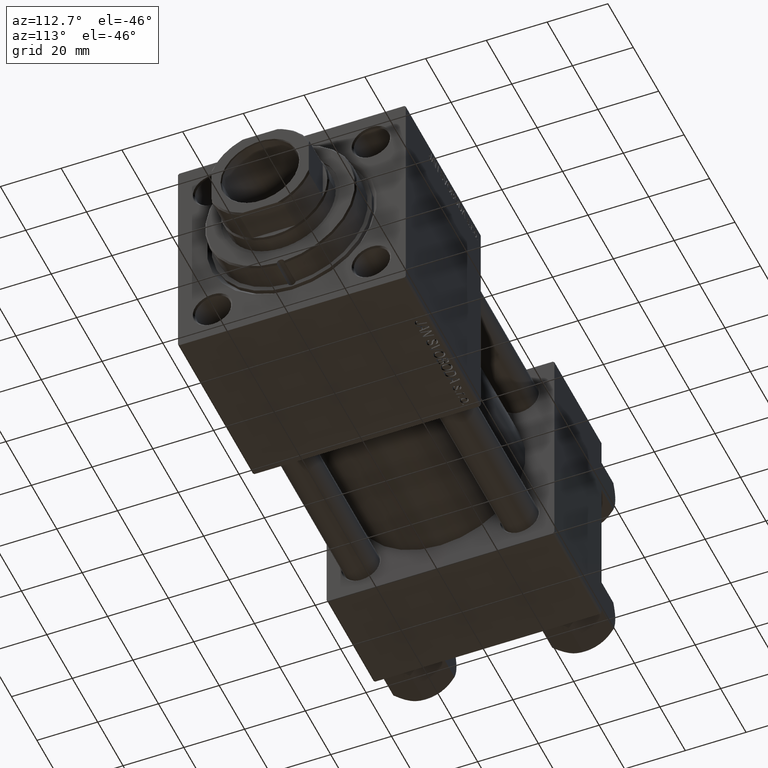
[diagram: clean part render]
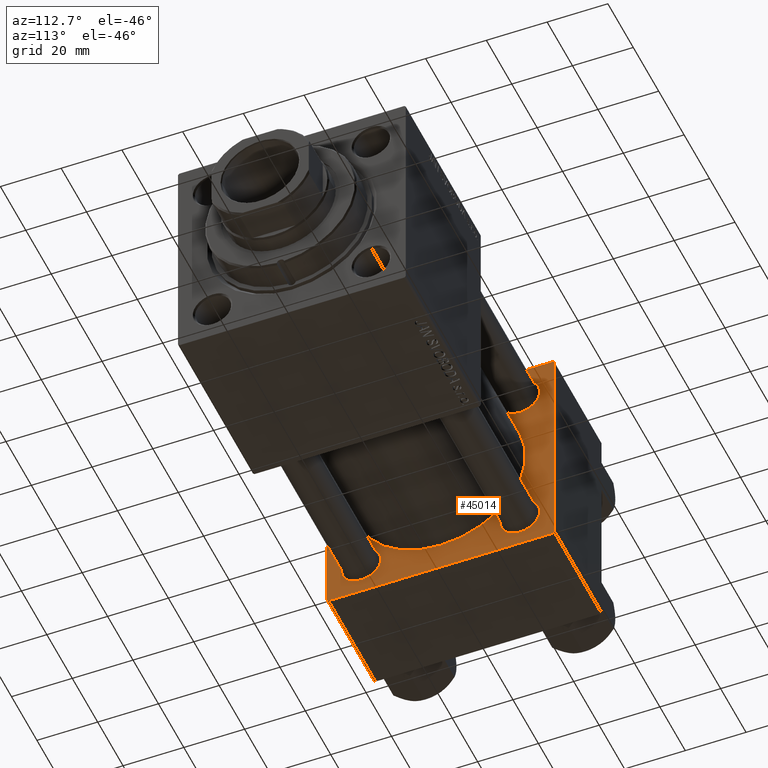
[diagram: same view with one face highlighted and labeled with its STEP entity id]
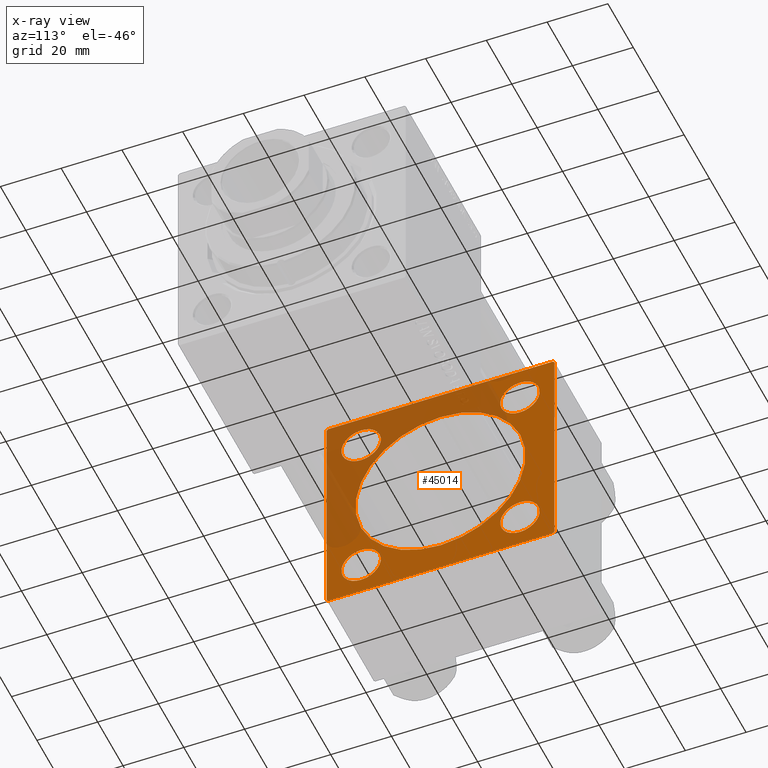
[diagram: x-ray of the same camera — body ghosted, the highlighted face saturated]
A machine part, auxiliary view. The second image highlights one B-rep face of the part: STEP entity #45014.
The next image is the same camera in x-ray: the body ghosted, the highlighted face saturated — about 40% of this face is hidden behind the body in this view.
In plain terms, the highlighted planar face has unit normal (-1, 0, 0).
Its self-contained STEP definition (entity closure, byte-faithful):
#1002 = CARTESIAN_POINT ( 'NONE',  ( 37.00000000000000000, -26.14999999999999147, 32.65000000000001990 ) ) ;
#1264 = FACE_BOUND ( 'NONE', #2562, .T. ) ;
#2562 = EDGE_LOOP ( 'NONE', ( #21542, #29133 ) ) ;
#2966 = AXIS2_PLACEMENT_3D ( 'NONE', #6539, #26437, #22104 ) ;
#3390 = AXIS2_PLACEMENT_3D ( 'NONE', #34623, #15240, #33864 ) ;
#3648 = VERTEX_POINT ( 'NONE', #46411 ) ;
#4005 = EDGE_CURVE ( 'NONE', #11038, #24720, #39227, .T. ) ;
#4181 = VERTEX_POINT ( 'NONE', #6522 ) ;
#4350 = AXIS2_PLACEMENT_3D ( 'NONE', #21207, #18167, #17140 ) ;
#4605 = DIRECTION ( 'NONE',  ( 0.000000000000000000, -1.000000000000000000, -9.251858538542972814E-17 ) ) ;
#4737 = CARTESIAN_POINT ( 'NONE',  ( 37.00000000000000000, 36.99999999999997868, -37.50000000000000000 ) ) ;
#4986 = EDGE_CURVE ( 'NONE', #13902, #3648, #12927, .T. ) ;
#5182 = ORIENTED_EDGE ( 'NONE', *, *, #4986, .F. ) ;
#5775 = ORIENTED_EDGE ( 'NONE', *, *, #10067, .T. ) ;
#5844 = DIRECTION ( 'NONE',  ( -0.000000000000000000, 0.000000000000000000, 1.000000000000000000 ) ) ;
#5937 = EDGE_CURVE ( 'NONE', #49639, #38217, #23286, .T. ) ;
#6522 = CARTESIAN_POINT ( 'NONE',  ( 37.00000000000000000, 26.14999999999999858, -32.65000000000003411 ) ) ;
#6539 = CARTESIAN_POINT ( 'NONE',  ( 37.00000000000000000, -26.14999999999999147, 26.15000000000000924 ) ) ;
#6821 = VECTOR ( 'NONE', #26865, 1000.000000000000000 ) ;
#7243 = ORIENTED_EDGE ( 'NONE', *, *, #8728, .T. ) ;
#7422 = CIRCLE ( 'NONE', #25314, 6.500000000000030198 ) ;
#7968 = CIRCLE ( 'NONE', #22595, 6.500000000000002665 ) ;
#8082 = DIRECTION ( 'NONE',  ( 0.000000000000000000, 0.000000000000000000, 1.000000000000000000 ) ) ;
#8584 = CARTESIAN_POINT ( 'NONE',  ( 37.00000000000000000, -26.14999999999999147, -26.15000000000000924 ) ) ;
#8728 = EDGE_CURVE ( 'NONE', #27639, #4181, #13281, .T. ) ;
#9100 = CARTESIAN_POINT ( 'NONE',  ( 37.00000000000000000, -26.14999999999999147, -26.15000000000000924 ) ) ;
#9183 = VECTOR ( 'NONE', #36956, 1000.000000000000114 ) ;
#9408 = EDGE_CURVE ( 'NONE', #38217, #49896, #19438, .T. ) ;
#10067 = EDGE_CURVE ( 'NONE', #27781, #34190, #7422, .T. ) ;
#10480 = DIRECTION ( 'NONE',  ( -1.000000000000000000, 0.000000000000000000, -0.000000000000000000 ) ) ;
#10817 = CARTESIAN_POINT ( 'NONE',  ( 37.00000000000000000, 36.99999999999999289, 37.50000000000000000 ) ) ;
#10891 = ORIENTED_EDGE ( 'NONE', *, *, #10997, .F. ) ;
#10997 = EDGE_CURVE ( 'NONE', #27526, #23393, #25355, .T. ) ;
#11038 = VERTEX_POINT ( 'NONE', #49655 ) ;
#11280 = DIRECTION ( 'NONE',  ( 0.000000000000000000, 0.7071067811865524577, -0.7071067811865426878 ) ) ;
#11312 = LINE ( 'NONE', #22782, #6821 ) ;
#12442 = CARTESIAN_POINT ( 'NONE',  ( 37.00000000000000000, 37.49999999999999289, 37.50000000000000000 ) ) ;
#12572 = CARTESIAN_POINT ( 'NONE',  ( 37.00000000000000000, -2.602085213965210642E-15, 28.00000000000000000 ) ) ;
#12747 = LINE ( 'NONE', #47662, #37394 ) ;
#12780 = CIRCLE ( 'NONE', #38849, 6.500000000000008882 ) ;
#12927 = LINE ( 'NONE', #12442, #35211 ) ;
#13153 = DIRECTION ( 'NONE',  ( 0.000000000000000000, 0.000000000000000000, 1.000000000000000000 ) ) ;
#13281 = CIRCLE ( 'NONE', #4350, 6.500000000000030198 ) ;
#13745 = FACE_BOUND ( 'NONE', #15035, .T. ) ;
#13902 = VERTEX_POINT ( 'NONE', #18147 ) ;
#14156 = ORIENTED_EDGE ( 'NONE', *, *, #32208, .T. ) ;
#15035 = EDGE_LOOP ( 'NONE', ( #26182, #28436 ) ) ;
#15240 = DIRECTION ( 'NONE',  ( 1.000000000000000000, -0.000000000000000000, 0.000000000000000000 ) ) ;
#15355 = CARTESIAN_POINT ( 'NONE',  ( 37.00000000000000000, -37.00000000000002132, -37.50000000000000711 ) ) ;
#15395 = EDGE_CURVE ( 'NONE', #13902, #46635, #45731, .T. ) ;
#15845 = EDGE_LOOP ( 'NONE', ( #29174, #7243 ) ) ;
#16826 = PLANE ( 'NONE',  #33327 ) ;
#17085 = CARTESIAN_POINT ( 'NONE',  ( 37.00000000000000000, -37.50000000000000711, 36.99999999999999289 ) ) ;
#17140 = DIRECTION ( 'NONE',  ( 0.000000000000000000, 0.000000000000000000, 1.000000000000000000 ) ) ;
#17184 = CARTESIAN_POINT ( 'NONE',  ( 37.00000000000000000, -2.602085213965210642E-15, 0.000000000000000000 ) ) ;
#17234 = ORIENTED_EDGE ( 'NONE', *, *, #18759, .T. ) ;
#17928 = VERTEX_POINT ( 'NONE', #1002 ) ;
#18117 = EDGE_CURVE ( 'NONE', #23393, #27526, #49043, .T. ) ;
#18147 = CARTESIAN_POINT ( 'NONE',  ( 37.00000000000000000, 37.49999999999999289, 37.00000000000000000 ) ) ;
#18167 = DIRECTION ( 'NONE',  ( -1.000000000000000000, 0.000000000000000000, -0.000000000000000000 ) ) ;
#18394 = DIRECTION ( 'NONE',  ( 0.000000000000000000, 0.000000000000000000, 1.000000000000000000 ) ) ;
#18759 = EDGE_CURVE ( 'NONE', #39891, #49639, #48177, .T. ) ;
#19065 = ORIENTED_EDGE ( 'NONE', *, *, #18117, .F. ) ;
#19438 = LINE ( 'NONE', #15355, #49750 ) ;
#19464 = DIRECTION ( 'NONE',  ( 0.000000000000000000, 9.251858538542971581E-17, -1.000000000000000000 ) ) ;
#20106 = VECTOR ( 'NONE', #22659, 1000.000000000000114 ) ;
#20899 = FACE_BOUND ( 'NONE', #15845, .T. ) ;
#21207 = CARTESIAN_POINT ( 'NONE',  ( 37.00000000000000000, 26.14999999999999858, -26.15000000000000213 ) ) ;
#21542 = ORIENTED_EDGE ( 'NONE', *, *, #27017, .T. ) ;
#21652 = FACE_OUTER_BOUND ( 'NONE', #38279, .T. ) ;
#21731 = EDGE_CURVE ( 'NONE', #46635, #39891, #11312, .T. ) ;
#22090 = EDGE_CURVE ( 'NONE', #4181, #27639, #27266, .T. ) ;
#22104 = DIRECTION ( 'NONE',  ( 0.000000000000000000, 0.000000000000000000, 1.000000000000000000 ) ) ;
#22595 = AXIS2_PLACEMENT_3D ( 'NONE', #8584, #47324, #13153 ) ;
#22659 = DIRECTION ( 'NONE',  ( -0.000000000000000000, 0.7071067811865474617, 0.7071067811865474617 ) ) ;
#22782 = CARTESIAN_POINT ( 'NONE',  ( 37.00000000000000000, 37.49999999999999289, 37.50000000000000000 ) ) ;
#22792 = DIRECTION ( 'NONE',  ( 0.000000000000000000, -0.7071067811865474617, 0.7071067811865474617 ) ) ;
#23193 = DIRECTION ( 'NONE',  ( -1.000000000000000000, 0.000000000000000000, -0.000000000000000000 ) ) ;
#23286 = LINE ( 'NONE', #30162, #48120 ) ;
#23393 = VERTEX_POINT ( 'NONE', #35035 ) ;
#24115 = ORIENTED_EDGE ( 'NONE', *, *, #5937, .T. ) ;
#24118 = CIRCLE ( 'NONE', #2966, 6.500000000000008882 ) ;
#24658 = DIRECTION ( 'NONE',  ( 0.000000000000000000, 0.000000000000000000, 1.000000000000000000 ) ) ;
#24720 = VERTEX_POINT ( 'NONE', #31408 ) ;
#24972 = FACE_BOUND ( 'NONE', #25616, .T. ) ;
#25314 = AXIS2_PLACEMENT_3D ( 'NONE', #39428, #35121, #8082 ) ;
#25355 = CIRCLE ( 'NONE', #3390, 28.00000000000000000 ) ;
#25509 = VERTEX_POINT ( 'NONE', #49271 ) ;
#25616 = EDGE_LOOP ( 'NONE', ( #5775, #34362 ) ) ;
#26182 = ORIENTED_EDGE ( 'NONE', *, *, #40378, .T. ) ;
#26437 = DIRECTION ( 'NONE',  ( -1.000000000000000000, 0.000000000000000000, -0.000000000000000000 ) ) ;
#26623 = CARTESIAN_POINT ( 'NONE',  ( 37.00000000000000000, -37.00000000000002132, -37.50000000000000711 ) ) ;
#26865 = DIRECTION ( 'NONE',  ( 0.000000000000000000, -1.000000000000000000, -9.251858538542971581E-17 ) ) ;
#26902 = ORIENTED_EDGE ( 'NONE', *, *, #9408, .T. ) ;
#27017 = EDGE_CURVE ( 'NONE', #25509, #17928, #24118, .T. ) ;
#27018 = VECTOR ( 'NONE', #22792, 1000.000000000000114 ) ;
#27028 = CARTESIAN_POINT ( 'NONE',  ( 37.00000000000000000, 26.14999999999999858, 26.15000000000000213 ) ) ;
#27266 = CIRCLE ( 'NONE', #45953, 6.500000000000030198 ) ;
#27526 = VERTEX_POINT ( 'NONE', #12572 ) ;
#27639 = VERTEX_POINT ( 'NONE', #35476 ) ;
#27781 = VERTEX_POINT ( 'NONE', #31896 ) ;
#27892 = ORIENTED_EDGE ( 'NONE', *, *, #44869, .F. ) ;
#28436 = ORIENTED_EDGE ( 'NONE', *, *, #4005, .T. ) ;
#28442 = ORIENTED_EDGE ( 'NONE', *, *, #15395, .T. ) ;
#28718 = ORIENTED_EDGE ( 'NONE', *, *, #21731, .T. ) ;
#29133 = ORIENTED_EDGE ( 'NONE', *, *, #33129, .T. ) ;
#29154 = CARTESIAN_POINT ( 'NONE',  ( 37.00000000000000000, 26.14999999999999858, 32.65000000000004121 ) ) ;
#29174 = ORIENTED_EDGE ( 'NONE', *, *, #22090, .T. ) ;
#29852 = CARTESIAN_POINT ( 'NONE',  ( 37.00000000000000000, -26.14999999999999147, 26.15000000000000924 ) ) ;
#30162 = CARTESIAN_POINT ( 'NONE',  ( 37.00000000000000000, -37.50000000000000711, 37.49999999999999289 ) ) ;
#31408 = CARTESIAN_POINT ( 'NONE',  ( 37.00000000000000000, -26.14999999999999147, -32.65000000000001279 ) ) ;
#31563 = DIRECTION ( 'NONE',  ( -1.000000000000000000, 0.000000000000000000, -0.000000000000000000 ) ) ;
#31774 = DIRECTION ( 'NONE',  ( 0.000000000000000000, 0.000000000000000000, 1.000000000000000000 ) ) ;
#31896 = CARTESIAN_POINT ( 'NONE',  ( 37.00000000000000000, 26.14999999999999858, 19.64999999999997016 ) ) ;
#31916 = AXIS2_PLACEMENT_3D ( 'NONE', #9100, #31563, #24658 ) ;
#32208 = EDGE_CURVE ( 'NONE', #36394, #3648, #34644, .T. ) ;
#32989 = DIRECTION ( 'NONE',  ( 0.000000000000000000, 0.000000000000000000, 1.000000000000000000 ) ) ;
#33129 = EDGE_CURVE ( 'NONE', #17928, #25509, #12780, .T. ) ;
#33327 = AXIS2_PLACEMENT_3D ( 'NONE', #40261, #41013, #5844 ) ;
#33864 = DIRECTION ( 'NONE',  ( 0.000000000000000000, 0.000000000000000000, 1.000000000000000000 ) ) ;
#34190 = VERTEX_POINT ( 'NONE', #29154 ) ;
#34362 = ORIENTED_EDGE ( 'NONE', *, *, #39080, .T. ) ;
#34623 = CARTESIAN_POINT ( 'NONE',  ( 37.00000000000000000, -2.602085213965210642E-15, 0.000000000000000000 ) ) ;
#34644 = LINE ( 'NONE', #38954, #20106 ) ;
#35035 = CARTESIAN_POINT ( 'NONE',  ( 37.00000000000000000, 8.269258236473776482E-16, -28.00000000000000000 ) ) ;
#35121 = DIRECTION ( 'NONE',  ( -1.000000000000000000, 0.000000000000000000, -0.000000000000000000 ) ) ;
#35211 = VECTOR ( 'NONE', #35887, 1000.000000000000000 ) ;
#35476 = CARTESIAN_POINT ( 'NONE',  ( 37.00000000000000000, 26.14999999999999858, -19.64999999999997371 ) ) ;
#35881 = DIRECTION ( 'NONE',  ( 0.000000000000000000, 0.000000000000000000, 1.000000000000000000 ) ) ;
#35887 = DIRECTION ( 'NONE',  ( 0.000000000000000000, 0.000000000000000000, -1.000000000000000000 ) ) ;
#36394 = VERTEX_POINT ( 'NONE', #4737 ) ;
#36563 = CARTESIAN_POINT ( 'NONE',  ( 37.00000000000000000, -37.50000000000000711, 36.99999999999999289 ) ) ;
#36956 = DIRECTION ( 'NONE',  ( -0.000000000000000000, -0.7071067811865474617, -0.7071067811865474617 ) ) ;
#37394 = VECTOR ( 'NONE', #4605, 1000.000000000000000 ) ;
#37734 = CARTESIAN_POINT ( 'NONE',  ( 37.00000000000000000, -37.00000000000000711, 37.49999999999999289 ) ) ;
#38217 = VERTEX_POINT ( 'NONE', #39157 ) ;
#38279 = EDGE_LOOP ( 'NONE', ( #27892, #14156, #5182, #28442, #28718, #17234, #24115, #26902 ) ) ;
#38849 = AXIS2_PLACEMENT_3D ( 'NONE', #29852, #10480, #18394 ) ;
#38954 = CARTESIAN_POINT ( 'NONE',  ( 37.00000000000000000, 37.49999999999999289, -36.99999999999998579 ) ) ;
#39080 = EDGE_CURVE ( 'NONE', #34190, #27781, #43717, .T. ) ;
#39157 = CARTESIAN_POINT ( 'NONE',  ( 37.00000000000000000, -37.50000000000000000, -37.00000000000003553 ) ) ;
#39227 = CIRCLE ( 'NONE', #31916, 6.500000000000002665 ) ;
#39428 = CARTESIAN_POINT ( 'NONE',  ( 37.00000000000000000, 26.14999999999999858, 26.15000000000000213 ) ) ;
#39458 = DIRECTION ( 'NONE',  ( -1.000000000000000000, 0.000000000000000000, -0.000000000000000000 ) ) ;
#39891 = VERTEX_POINT ( 'NONE', #37734 ) ;
#40075 = CARTESIAN_POINT ( 'NONE',  ( 37.00000000000000000, 36.99999999999999289, 37.50000000000000000 ) ) ;
#40261 = CARTESIAN_POINT ( 'NONE',  ( 37.00000000000000000, 0.000000000000000000, 0.000000000000000000 ) ) ;
#40378 = EDGE_CURVE ( 'NONE', #24720, #11038, #7968, .T. ) ;
#41013 = DIRECTION ( 'NONE',  ( -1.000000000000000000, 0.000000000000000000, -0.000000000000000000 ) ) ;
#43524 = CARTESIAN_POINT ( 'NONE',  ( 37.00000000000000000, 26.14999999999999858, -26.15000000000000213 ) ) ;
#43717 = CIRCLE ( 'NONE', #46979, 6.500000000000030198 ) ;
#44194 = DIRECTION ( 'NONE',  ( 1.000000000000000000, -0.000000000000000000, 0.000000000000000000 ) ) ;
#44841 = FACE_BOUND ( 'NONE', #48193, .T. ) ;
#44869 = EDGE_CURVE ( 'NONE', #36394, #49896, #12747, .T. ) ;
#45014 = ADVANCED_FACE ( 'NONE', ( #13745, #20899, #1264, #24972, #44841, #21652 ), #16826, .F. ) ;
#45731 = LINE ( 'NONE', #10817, #27018 ) ;
#45953 = AXIS2_PLACEMENT_3D ( 'NONE', #43524, #39458, #35881 ) ;
#46411 = CARTESIAN_POINT ( 'NONE',  ( 37.00000000000000000, 37.49999999999999289, -36.99999999999998579 ) ) ;
#46614 = AXIS2_PLACEMENT_3D ( 'NONE', #17184, #44194, #32989 ) ;
#46635 = VERTEX_POINT ( 'NONE', #40075 ) ;
#46979 = AXIS2_PLACEMENT_3D ( 'NONE', #27028, #23193, #31774 ) ;
#47324 = DIRECTION ( 'NONE',  ( -1.000000000000000000, 0.000000000000000000, -0.000000000000000000 ) ) ;
#47662 = CARTESIAN_POINT ( 'NONE',  ( 37.00000000000000000, 37.49999999999999289, -37.50000000000000000 ) ) ;
#48120 = VECTOR ( 'NONE', #19464, 1000.000000000000000 ) ;
#48177 = LINE ( 'NONE', #17085, #9183 ) ;
#48193 = EDGE_LOOP ( 'NONE', ( #10891, #19065 ) ) ;
#49043 = CIRCLE ( 'NONE', #46614, 28.00000000000000000 ) ;
#49271 = CARTESIAN_POINT ( 'NONE',  ( 37.00000000000000000, -26.14999999999999147, 19.65000000000000213 ) ) ;
#49639 = VERTEX_POINT ( 'NONE', #36563 ) ;
#49655 = CARTESIAN_POINT ( 'NONE',  ( 37.00000000000000000, -26.14999999999999147, -19.65000000000000924 ) ) ;
#49750 = VECTOR ( 'NONE', #11280, 1000.000000000000000 ) ;
#49896 = VERTEX_POINT ( 'NONE', #26623 ) ;